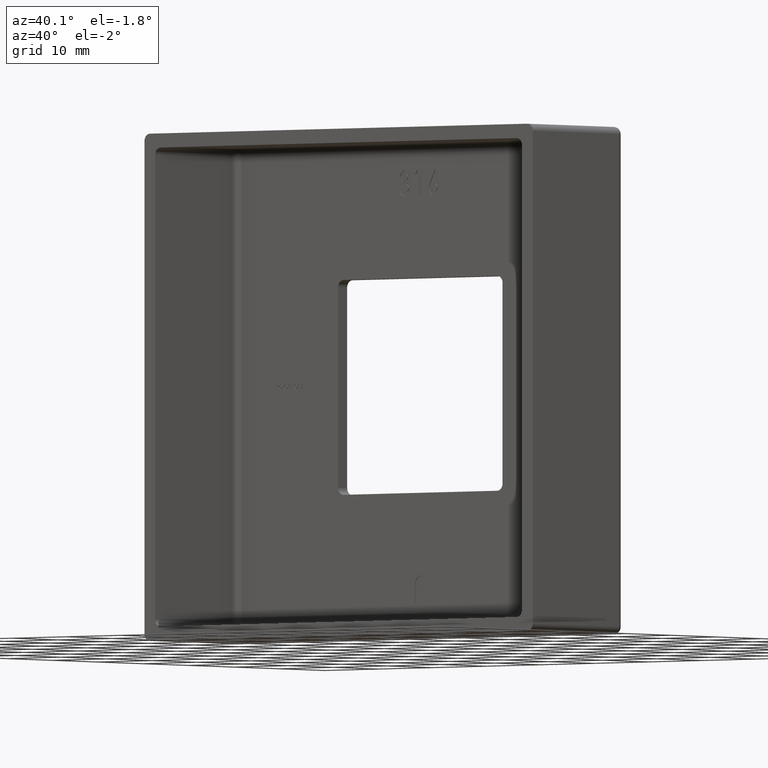
[diagram: clean part render]
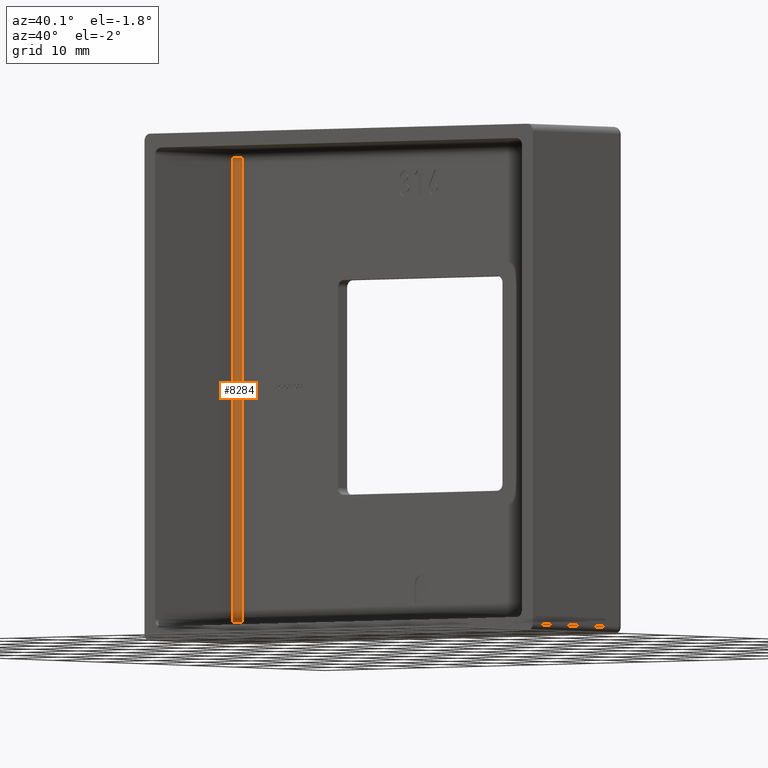
[diagram: same view with one face highlighted and labeled with its STEP entity id]
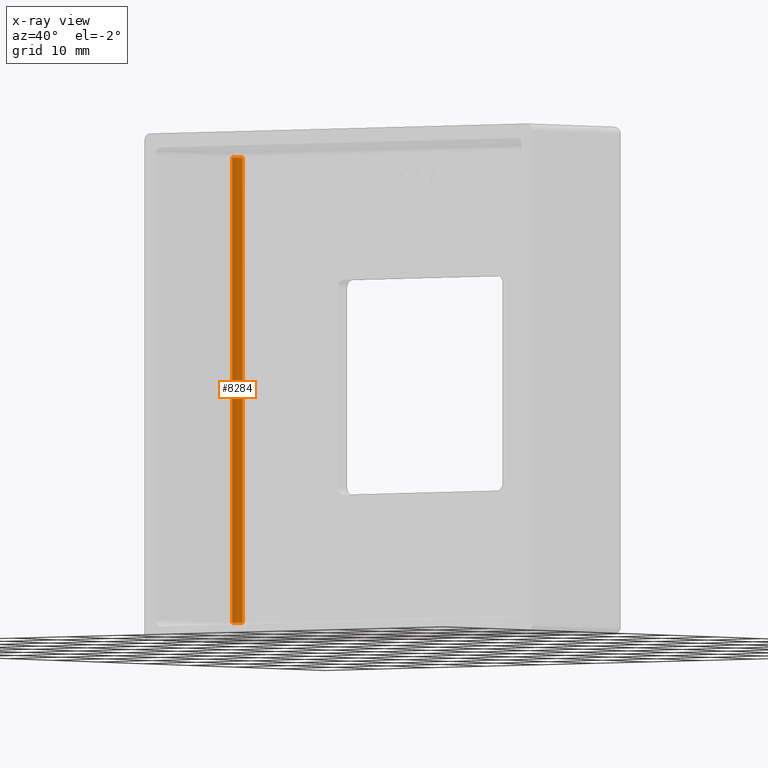
[diagram: x-ray of the same camera — body ghosted, the highlighted face saturated]
A machine part, auxiliary view. The second image highlights one B-rep face of the part: STEP entity #8284.
The next image is the same camera in x-ray: the body ghosted, the highlighted face saturated — about 0% of this face is hidden behind the body in this view.
In plain terms, the highlighted cylindrical surface (edge-blend (fillet) strip) has radius 1 mm, axis along (0, -0, 1).
Its self-contained STEP definition (entity closure, byte-faithful):
#794 = AXIS2_PLACEMENT_3D ( 'NONE', #16396, #13593, #8012 ) ;
#2377 = DIRECTION ( 'NONE',  ( 0.000000000000000000, -0.000000000000000000, 1.000000000000000000 ) ) ;
#3929 = DIRECTION ( 'NONE',  ( -0.000000000000000000, -6.938893903907221278E-15, 1.000000000000000000 ) ) ;
#4230 = ORIENTED_EDGE ( 'NONE', *, *, #8831, .F. ) ;
#4476 = CARTESIAN_POINT ( 'NONE',  ( -34.00000000000001421, 17.00000000000000000, -36.00000000000000000 ) ) ;
#4549 = AXIS2_PLACEMENT_3D ( 'NONE', #17822, #2377, #17758 ) ;
#5016 = EDGE_CURVE ( 'NONE', #5829, #5706, #15857, .T. ) ;
#5598 = LINE ( 'NONE', #7631, #15001 ) ;
#5706 = VERTEX_POINT ( 'NONE', #11262 ) ;
#5755 = CARTESIAN_POINT ( 'NONE',  ( -34.00000000000000711, 17.00000000000000000, 32.99999999999997868 ) ) ;
#5829 = VERTEX_POINT ( 'NONE', #16066 ) ;
#5876 = ORIENTED_EDGE ( 'NONE', *, *, #6999, .T. ) ;
#6071 = EDGE_LOOP ( 'NONE', ( #5876, #4230, #12023, #11793 ) ) ;
#6593 = CYLINDRICAL_SURFACE ( 'NONE', #794, 1.000000000000000888 ) ;
#6991 = VERTEX_POINT ( 'NONE', #13571 ) ;
#6999 = EDGE_CURVE ( 'NONE', #6991, #14305, #7705, .T. ) ;
#7405 = DIRECTION ( 'NONE',  ( 9.637352644315597708E-17, -0.000000000000000000, 1.000000000000000000 ) ) ;
#7631 = CARTESIAN_POINT ( 'NONE',  ( -33.00000000000001421, 18.00000000000000355, 3.180326372624148969E-15 ) ) ;
#7705 = CIRCLE ( 'NONE', #10087, 1.000000000000000888 ) ;
#8012 = DIRECTION ( 'NONE',  ( 1.000000000000000000, 0.000000000000000000, 0.000000000000000000 ) ) ;
#8104 = CARTESIAN_POINT ( 'NONE',  ( -33.00000000000000711, 17.00000000000000000, 32.99999999999997868 ) ) ;
#8284 = ADVANCED_FACE ( 'NONE', ( #17096 ), #6593, .F. ) ;
#8831 = EDGE_CURVE ( 'NONE', #5706, #14305, #13606, .T. ) ;
#9578 = DIRECTION ( 'NONE',  ( 0.000000000000000000, 1.000000000000000000, 6.938893903907222067E-15 ) ) ;
#9874 = VECTOR ( 'NONE', #7405, 1000.000000000000000 ) ;
#10087 = AXIS2_PLACEMENT_3D ( 'NONE', #8104, #3929, #9578 ) ;
#11262 = CARTESIAN_POINT ( 'NONE',  ( -34.00000000000001421, 17.00000000000000000, -32.99999999999999289 ) ) ;
#11760 = DIRECTION ( 'NONE',  ( -9.637352644315597708E-17, 0.000000000000000000, -1.000000000000000000 ) ) ;
#11793 = ORIENTED_EDGE ( 'NONE', *, *, #14524, .F. ) ;
#12023 = ORIENTED_EDGE ( 'NONE', *, *, #5016, .F. ) ;
#13571 = CARTESIAN_POINT ( 'NONE',  ( -33.00000000000000711, 18.00000000000000355, 32.99999999999998579 ) ) ;
#13593 = DIRECTION ( 'NONE',  ( 9.637352644315597708E-17, -0.000000000000000000, 1.000000000000000000 ) ) ;
#13606 = LINE ( 'NONE', #4476, #9874 ) ;
#14305 = VERTEX_POINT ( 'NONE', #5755 ) ;
#14524 = EDGE_CURVE ( 'NONE', #6991, #5829, #5598, .T. ) ;
#15001 = VECTOR ( 'NONE', #11760, 1000.000000000000000 ) ;
#15857 = CIRCLE ( 'NONE', #4549, 1.000000000000000888 ) ;
#16066 = CARTESIAN_POINT ( 'NONE',  ( -33.00000000000001421, 18.00000000000000355, -32.99999999999999289 ) ) ;
#16396 = CARTESIAN_POINT ( 'NONE',  ( -33.00000000000001421, 17.00000000000000000, -36.00000000000000000 ) ) ;
#17096 = FACE_OUTER_BOUND ( 'NONE', #6071, .T. ) ;
#17758 = DIRECTION ( 'NONE',  ( 1.000000000000000000, 0.000000000000000000, 0.000000000000000000 ) ) ;
#17822 = CARTESIAN_POINT ( 'NONE',  ( -33.00000000000001421, 17.00000000000000000, -32.99999999999999289 ) ) ;